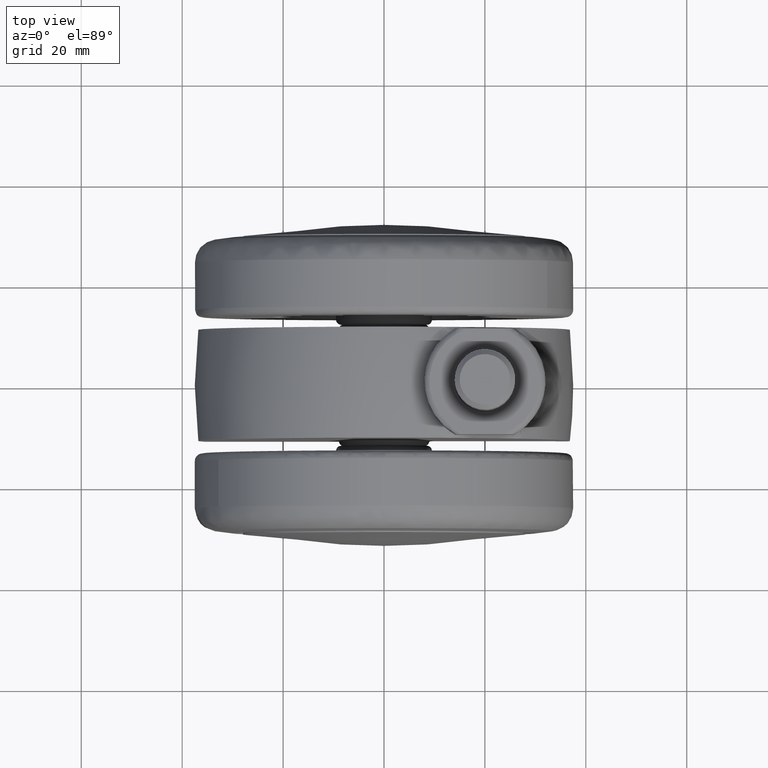
[diagram: clean part render]
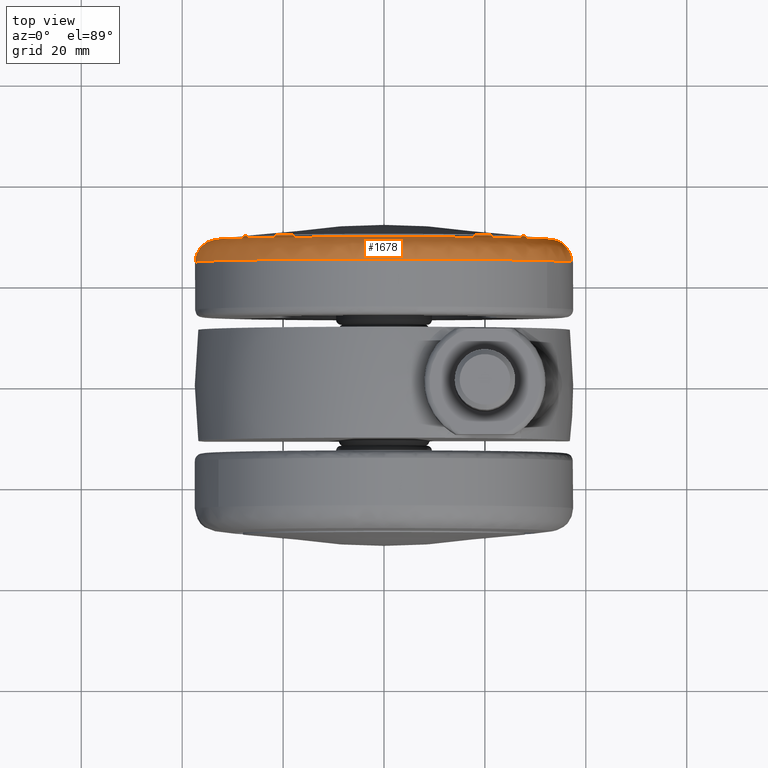
[diagram: same view with one face highlighted and labeled with its STEP entity id]
A machine part, top view. The second image highlights one B-rep face of the part: STEP entity #1678.
In plain terms, the highlighted face is a freeform B-spline surface patch.
Its self-contained STEP definition (entity closure, byte-faithful):
#679=CARTESIAN_POINT('',(32.339734353394192,24.399329006749241,18.983982246888448));
#680=VERTEX_POINT('',#679);
#686=CARTESIAN_POINT('',(0.0,24.399333999994649,37.500000000000000));
#687=VERTEX_POINT('',#686);
#688=CARTESIAN_POINT('',(0.0,24.399333999994649,37.500000000000000));
#689=CARTESIAN_POINT('',(21.470512347226343,24.399331796969498,37.499999999997542));
#690=CARTESIAN_POINT('',(32.339734353394192,24.399329006749230,18.983982246888456));
#698=(BOUNDED_CURVE()B_SPLINE_CURVE(2,(#688,#689,#690),.UNSPECIFIED.,.F.,.U.)B_SPLINE_CURVE_WITH_KNOTS((3,3),(0.0,0.163621897406238),.UNSPECIFIED.)CURVE()GEOMETRIC_REPRESENTATION_ITEM()RATIONAL_B_SPLINE_CURVE((1.0,0.808305023201290,0.867534013018978))REPRESENTATION_ITEM(''));
#699=EDGE_CURVE('',#687,#680,#698,.T.);
#701=CARTESIAN_POINT('',(-37.204308988794310,24.399327215464631,-4.699935389107674));
#702=VERTEX_POINT('',#701);
#703=CARTESIAN_POINT('',(-37.204308988794303,24.399327215464631,-4.699935389107673));
#704=CARTESIAN_POINT('',(-37.499999999941700,24.399327403620362,-2.359269223915413));
#705=CARTESIAN_POINT('',(-37.499999999943590,24.399327617040800,7.133097E-012));
#706=CARTESIAN_POINT('',(-37.499999999973568,24.399331009305818,37.500000000003332));
#707=CARTESIAN_POINT('',(0.0,24.399333999994649,37.500000000000000));
#715=(BOUNDED_CURVE()B_SPLINE_CURVE(2,(#703,#704,#705,#706,#707),.UNSPECIFIED.,.F.,.U.)B_SPLINE_CURVE_WITH_KNOTS((3,2,3),(0.728321532286490,0.750000000000000,1.0),.UNSPECIFIED.)CURVE()GEOMETRIC_REPRESENTATION_ITEM()RATIONAL_B_SPLINE_CURVE((0.953608891764519,0.974602095249786,1.0,0.707106781186547,1.0))REPRESENTATION_ITEM(''));
#716=EDGE_CURVE('',#702,#687,#715,.T.);
#848=CARTESIAN_POINT('',(37.204308988794310,24.399327215464631,4.699935389107671));
#849=VERTEX_POINT('',#848);
#865=CARTESIAN_POINT('',(32.339734353394192,24.399329006749230,18.983982246888456));
#866=CARTESIAN_POINT('',(36.238962510509886,24.399328005778571,12.341540153044839));
#867=CARTESIAN_POINT('',(37.204308988794310,24.399327215464627,4.699935389107671));
#875=(BOUNDED_CURVE()B_SPLINE_CURVE(2,(#865,#866,#867),.UNSPECIFIED.,.F.,.U.)B_SPLINE_CURVE_WITH_KNOTS((3,3),(0.163621897406238,0.228321532286490),.UNSPECIFIED.)CURVE()GEOMETRIC_REPRESENTATION_ITEM()RATIONAL_B_SPLINE_CURVE((0.867534013018978,0.890954435812489,0.953608891764519))REPRESENTATION_ITEM(''));
#876=EDGE_CURVE('',#680,#849,#875,.T.);
#1584=CARTESIAN_POINT('',(33.110638410765013,28.888321986242559,3.710672911504585));
#1585=CARTESIAN_POINT('',(33.081367960840929,28.888321986242563,3.942372380655148));
#1586=CARTESIAN_POINT('',(28.876496757012045,28.888321986242580,37.227355300306577));
#1587=CARTESIAN_POINT('',(-4.175429271647273,28.888321986242563,33.051926028659302));
#1588=CARTESIAN_POINT('',(-37.227355300306577,28.888321986242580,28.876496757012045));
#1589=CARTESIAN_POINT('',(-33.022487492198991,28.888321986242563,-4.408459282737471));
#1590=CARTESIAN_POINT('',(-32.993220398499851,28.888321986242563,-4.640132184632035));
#1591=CARTESIAN_POINT('',(37.549752507749339,28.575279005864250,4.208159556926757));
#1592=CARTESIAN_POINT('',(37.516557794412670,28.575279005864243,4.470922769609234));
#1593=CARTESIAN_POINT('',(32.747943215860715,28.575279005864260,42.218394000826102));
#1594=CARTESIAN_POINT('',(-4.735225392482692,28.575279005864250,37.483168608343398));
#1595=CARTESIAN_POINT('',(-42.218394000826102,28.575279005864260,32.747943215860715));
#1596=CARTESIAN_POINT('',(-37.449783273256770,28.575279005864246,-4.999497531689468));
#1597=CARTESIAN_POINT('',(-37.416592366111153,28.575279005864239,-5.262230615267364));
#1598=CARTESIAN_POINT('',(37.260961846499086,24.107298746891260,4.175795104435609));
#1599=CARTESIAN_POINT('',(37.228022429737607,24.107298746891257,4.436537436636194));
#1600=CARTESIAN_POINT('',(32.496082696302217,24.107298746891271,41.893697375517945));
#1601=CARTESIAN_POINT('',(-4.698807339607861,24.107298746891264,37.194890035910078));
#1602=CARTESIAN_POINT('',(-41.893697375517945,24.107298746891271,32.496082696302217));
#1603=CARTESIAN_POINT('',(-37.161761463447760,24.107298746891257,-4.961046993359085));
#1604=CARTESIAN_POINT('',(-37.128825823604373,24.107298746891253,-5.221759428174432));
#1612=(BOUNDED_SURFACE()B_SPLINE_SURFACE(2,2,((#1584,#1591,#1598),(#1585,#1592,#1599),(#1586,#1593,#1600),(#1587,#1594,#1601),(#1588,#1595,#1602),(#1589,#1596,#1603),(#1590,#1597,#1604)),.UNSPECIFIED.,.F.,.F.,.U.)B_SPLINE_SURFACE_WITH_KNOTS((3,1,2,1,3),(3,3),(0.0,0.621235380450436,62.737552711247858,124.853870042045300,125.475033561691500),(0.0,7.429652838538877),.UNSPECIFIED.)GEOMETRIC_REPRESENTATION_ITEM()RATIONAL_B_SPLINE_SURFACE(((0.919162393050953,0.651133175099914,0.917905743474121),(0.916485597906730,0.649236937683624,0.915232607959046),(0.646160401141329,0.457738998897080,0.645276991201150),(0.913808802762508,0.647340700267334,0.912559472443971),(0.646160401141329,0.457738998897080,0.645276991201150),(0.916485288271030,0.649236718338187,0.915232298746670),(0.919161773779553,0.651132736409040,0.917905125049369)))REPRESENTATION_ITEM('')SURFACE());
#1613=ORIENTED_EDGE('',*,*,#699,.T.);
#1614=ORIENTED_EDGE('',*,*,#876,.T.);
#1615=CARTESIAN_POINT('',(33.339904526506977,28.858494214493330,4.211809416987338));
#1616=VERTEX_POINT('',#1615);
#1617=CARTESIAN_POINT('',(33.339904526506984,28.858494214493319,4.211809416987339));
#1618=CARTESIAN_POINT('',(37.204311022734984,28.330118050259454,4.699966566886529));
#1619=CARTESIAN_POINT('',(37.204308988794317,24.399327215464638,4.699935389107671));
#1627=(BOUNDED_CURVE()B_SPLINE_CURVE(2,(#1617,#1618,#1619),.UNSPECIFIED.,.F.,.U.)B_SPLINE_CURVE_WITH_KNOTS((3,3),(-1.708945455329805,-0.294709762184682),.UNSPECIFIED.)CURVE()GEOMETRIC_REPRESENTATION_ITEM()RATIONAL_B_SPLINE_CURVE((0.890702966076892,0.670389822836261,0.889567064219011))REPRESENTATION_ITEM(''));
#1628=EDGE_CURVE('',#1616,#849,#1627,.T.);
#1629=ORIENTED_EDGE('',*,*,#1628,.F.);
#1630=CARTESIAN_POINT('',(0.0,28.858494288676152,33.604889112773037));
#1631=VERTEX_POINT('',#1630);
#1632=CARTESIAN_POINT('',(0.0,28.858494288676152,33.604889112773037));
#1633=CARTESIAN_POINT('',(29.626695034887806,28.858494288676155,33.604889112773058));
#1634=CARTESIAN_POINT('',(33.339904526506984,28.858494214493327,4.211809416987338));
#1642=(BOUNDED_CURVE()B_SPLINE_CURVE(2,(#1632,#1633,#1634),.UNSPECIFIED.,.F.,.U.)B_SPLINE_CURVE_WITH_KNOTS((3,3),(0.0,0.228321256474567),.UNSPECIFIED.)CURVE()GEOMETRIC_REPRESENTATION_ITEM()RATIONAL_B_SPLINE_CURVE((1.0,0.732505009070529,0.953608357578416))REPRESENTATION_ITEM(''));
#1643=EDGE_CURVE('',#1631,#1616,#1642,.T.);
#1644=ORIENTED_EDGE('',*,*,#1643,.F.);
#1645=CARTESIAN_POINT('',(-33.339904526506977,28.858494214493330,-4.211809416987348));
#1646=VERTEX_POINT('',#1645);
#1647=CARTESIAN_POINT('',(-33.339904526506984,28.858494214493323,-4.211809416987348));
#1648=CARTESIAN_POINT('',(-33.604889112773051,28.858494288676148,-2.114240417324270));
#1649=CARTESIAN_POINT('',(-33.604889112773051,28.858494288676152,-3.534030E-015));
#1650=CARTESIAN_POINT('',(-33.604889112773058,28.858494288676152,33.604889112773058));
#1651=CARTESIAN_POINT('',(0.0,28.858494288676152,33.604889112773037));
#1659=(BOUNDED_CURVE()B_SPLINE_CURVE(2,(#1647,#1648,#1649,#1650,#1651),.UNSPECIFIED.,.F.,.U.)B_SPLINE_CURVE_WITH_KNOTS((3,2,3),(0.728321256474567,0.750000000000000,1.0),.UNSPECIFIED.)CURVE()GEOMETRIC_REPRESENTATION_ITEM()RATIONAL_B_SPLINE_CURVE((0.953608357578416,0.974601772116019,1.0,0.707106781186548,1.0))REPRESENTATION_ITEM(''));
#1660=EDGE_CURVE('',#1646,#1631,#1659,.T.);
#1661=ORIENTED_EDGE('',*,*,#1660,.F.);
#1662=CARTESIAN_POINT('',(-33.339904526506984,28.858494214493330,-4.211809416987348));
#1663=CARTESIAN_POINT('',(-37.204311022734998,28.330118050259461,-4.699966566886537));
#1664=CARTESIAN_POINT('',(-37.204308988794317,24.399327215464641,-4.699935389107674));
#1672=(BOUNDED_CURVE()B_SPLINE_CURVE(2,(#1662,#1663,#1664),.UNSPECIFIED.,.F.,.U.)B_SPLINE_CURVE_WITH_KNOTS((3,3),(-1.708945455329806,-0.294709762184683),.UNSPECIFIED.)CURVE()GEOMETRIC_REPRESENTATION_ITEM()RATIONAL_B_SPLINE_CURVE((0.890702966076892,0.670389822836261,0.889567064219011))REPRESENTATION_ITEM(''));
#1673=EDGE_CURVE('',#1646,#702,#1672,.T.);
#1674=ORIENTED_EDGE('',*,*,#1673,.T.);
#1675=ORIENTED_EDGE('',*,*,#716,.T.);
#1676=EDGE_LOOP('',(#1613,#1614,#1629,#1644,#1661,#1674,#1675));
#1677=FACE_OUTER_BOUND('',#1676,.T.);
#1678=ADVANCED_FACE('',(#1677),#1612,.T.);